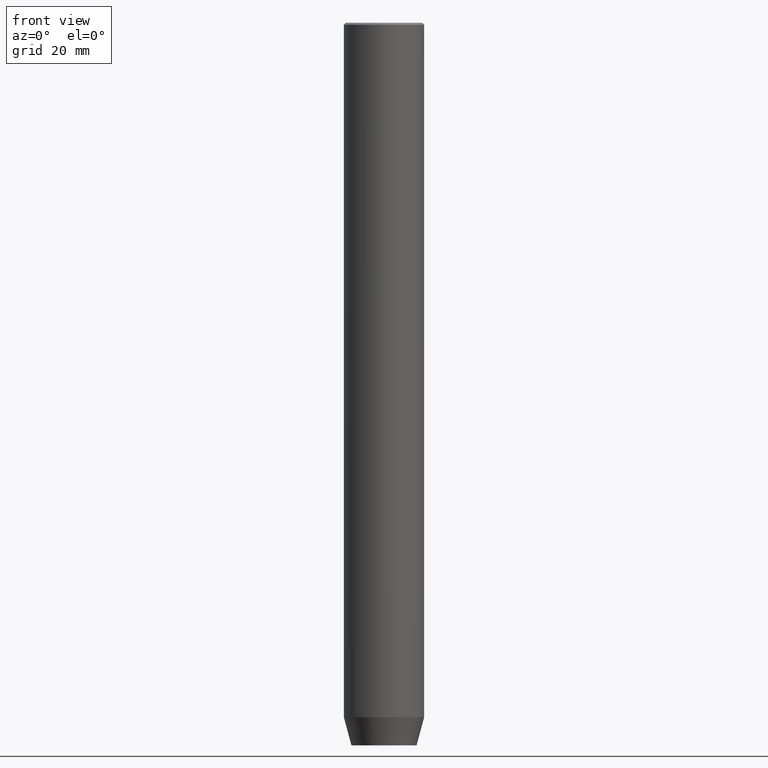
[diagram: clean part render]
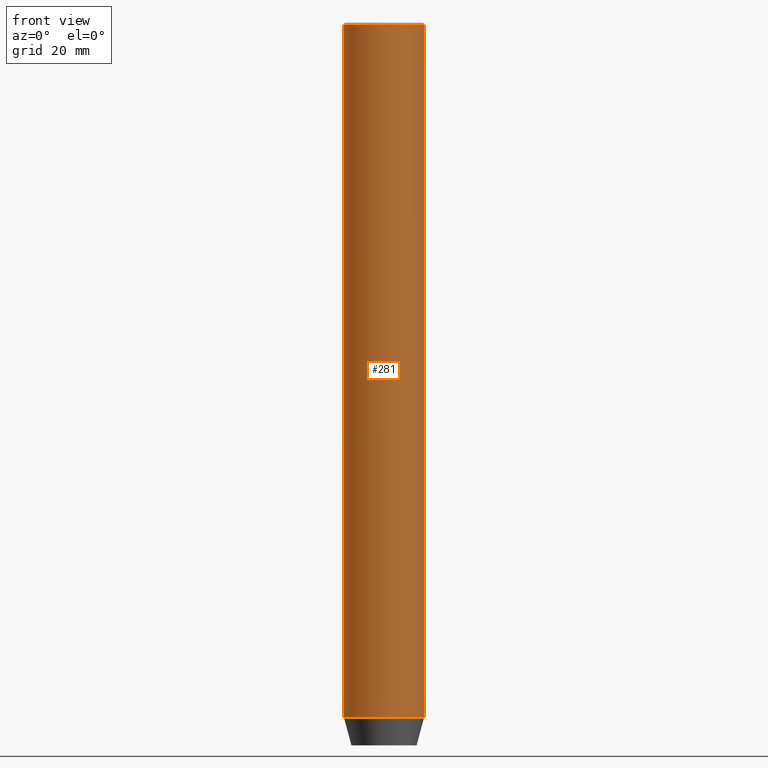
[diagram: same view with one face highlighted and labeled with its STEP entity id]
A machine part, front view. The second image highlights one B-rep face of the part: STEP entity #281.
In plain terms, the highlighted cylindrical surface (partial cylindrical patch) has radius 10 mm, axis along (-0, -0, 1).
Its self-contained STEP definition (entity closure, byte-faithful):
#1 = VERTEX_POINT ( 'NONE', #112 ) ;
#7 = VERTEX_POINT ( 'NONE', #407 ) ;
#14 = DIRECTION ( 'NONE',  ( -0.000000000000000000, -0.000000000000000000, 1.000000000000000000 ) ) ;
#66 = CARTESIAN_POINT ( 'NONE',  ( 0.000000000000000000, 0.000000000000000000, 0.000000000000000000 ) ) ;
#87 = EDGE_CURVE ( 'NONE', #246, #397, #323, .T. ) ;
#94 = ORIENTED_EDGE ( 'NONE', *, *, #583, .T. ) ;
#102 = EDGE_LOOP ( 'NONE', ( #164, #94, #301, #434 ) ) ;
#112 = CARTESIAN_POINT ( 'NONE',  ( 10.00000000000000000, 0.000000000000000000, -0.4999999999999987232 ) ) ;
#121 = CARTESIAN_POINT ( 'NONE',  ( -10.00000000000000000, 1.224646799147353256E-15, 0.000000000000000000 ) ) ;
#130 = DIRECTION ( 'NONE',  ( -0.000000000000000000, -0.000000000000000000, 1.000000000000000000 ) ) ;
#164 = ORIENTED_EDGE ( 'NONE', *, *, #87, .F. ) ;
#178 = CARTESIAN_POINT ( 'NONE',  ( 10.00000000000000000, 0.000000000000000000, 0.000000000000000000 ) ) ;
#180 = DIRECTION ( 'NONE',  ( 0.000000000000000000, 0.000000000000000000, -1.000000000000000000 ) ) ;
#209 = AXIS2_PLACEMENT_3D ( 'NONE', #268, #180, #495 ) ;
#217 = VECTOR ( 'NONE', #130, 1000.000000000000000 ) ;
#229 = CARTESIAN_POINT ( 'NONE',  ( 0.000000000000000000, 0.000000000000000000, -173.0000000000000000 ) ) ;
#243 = CYLINDRICAL_SURFACE ( 'NONE', #369, 10.00000000000000000 ) ;
#246 = VERTEX_POINT ( 'NONE', #350 ) ;
#249 = FACE_OUTER_BOUND ( 'NONE', #102, .T. ) ;
#258 = CARTESIAN_POINT ( 'NONE',  ( -10.00000000000000000, 1.224646799147353256E-15, -0.4999999999999987232 ) ) ;
#260 = DIRECTION ( 'NONE',  ( 1.000000000000000000, 0.000000000000000000, 0.000000000000000000 ) ) ;
#268 = CARTESIAN_POINT ( 'NONE',  ( 0.000000000000000000, 0.000000000000000000, -0.4999999999999987232 ) ) ;
#281 = ADVANCED_FACE ( 'NONE', ( #249 ), #243, .T. ) ;
#301 = ORIENTED_EDGE ( 'NONE', *, *, #309, .T. ) ;
#309 = EDGE_CURVE ( 'NONE', #7, #1, #498, .T. ) ;
#313 = DIRECTION ( 'NONE',  ( -0.000000000000000000, -0.000000000000000000, 1.000000000000000000 ) ) ;
#323 = LINE ( 'NONE', #121, #326 ) ;
#326 = VECTOR ( 'NONE', #313, 1000.000000000000000 ) ;
#339 = EDGE_CURVE ( 'NONE', #1, #397, #501, .T. ) ;
#350 = CARTESIAN_POINT ( 'NONE',  ( -10.00000000000000000, 1.224646799147353256E-15, -173.0000000000000000 ) ) ;
#369 = AXIS2_PLACEMENT_3D ( 'NONE', #66, #14, #260 ) ;
#397 = VERTEX_POINT ( 'NONE', #258 ) ;
#407 = CARTESIAN_POINT ( 'NONE',  ( 10.00000000000000000, 0.000000000000000000, -173.0000000000000000 ) ) ;
#424 = DIRECTION ( 'NONE',  ( 1.000000000000000000, 0.000000000000000000, 0.000000000000000000 ) ) ;
#434 = ORIENTED_EDGE ( 'NONE', *, *, #339, .T. ) ;
#457 = AXIS2_PLACEMENT_3D ( 'NONE', #229, #464, #424 ) ;
#464 = DIRECTION ( 'NONE',  ( -0.000000000000000000, -0.000000000000000000, 1.000000000000000000 ) ) ;
#495 = DIRECTION ( 'NONE',  ( 1.000000000000000000, 0.000000000000000000, 0.000000000000000000 ) ) ;
#498 = LINE ( 'NONE', #178, #217 ) ;
#501 = CIRCLE ( 'NONE', #209, 10.00000000000000000 ) ;
#528 = CIRCLE ( 'NONE', #457, 10.00000000000000000 ) ;
#583 = EDGE_CURVE ( 'NONE', #246, #7, #528, .T. ) ;